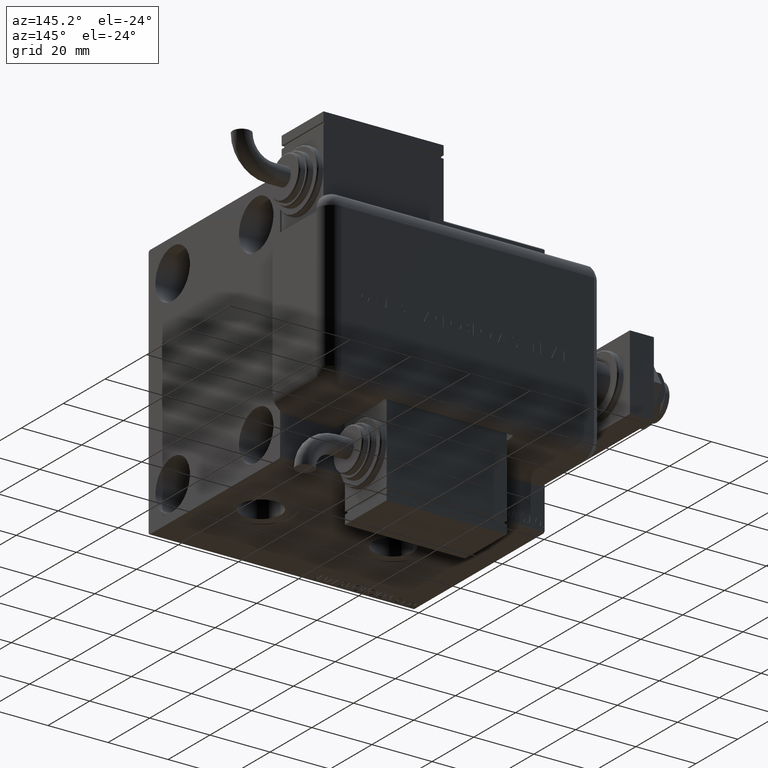
[diagram: clean part render]
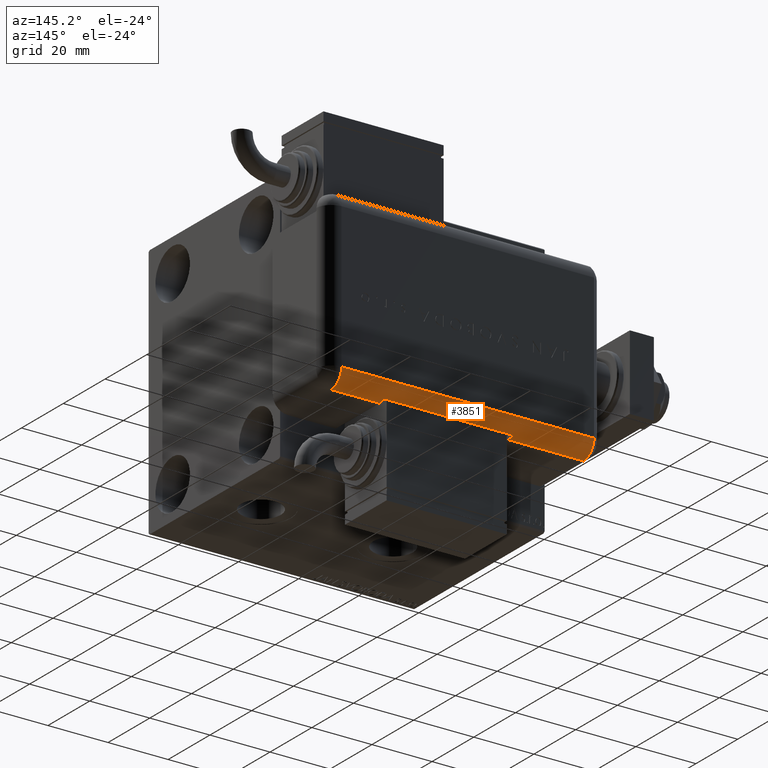
[diagram: same view with one face highlighted and labeled with its STEP entity id]
A machine part, auxiliary view. The second image highlights one B-rep face of the part: STEP entity #3851.
In plain terms, the highlighted cylindrical surface (edge-blend (fillet) strip) has radius 5 mm, axis along (1, -0, -0).
Its self-contained STEP definition (entity closure, byte-faithful):
#168 = ORIENTED_EDGE ( 'NONE', *, *, #21626, .T. ) ;
#2035 = CIRCLE ( 'NONE', #58034, 5.000000000000000888 ) ;
#2290 = CARTESIAN_POINT ( 'NONE',  ( -28.48998886412872267, 22.99999999999998934, 89.00000000000000000 ) ) ;
#2362 = VERTEX_POINT ( 'NONE', #13643 ) ;
#2425 = VERTEX_POINT ( 'NONE', #55912 ) ;
#3851 = ADVANCED_FACE ( 'NONE', ( #56296 ), #14916, .T. ) ;
#5932 = CARTESIAN_POINT ( 'NONE',  ( -28.99999999999999645, 20.79999999999998295, 89.00000000000000000 ) ) ;
#6574 = ORIENTED_EDGE ( 'NONE', *, *, #38309, .F. ) ;
#7389 = AXIS2_PLACEMENT_3D ( 'NONE', #13482, #41269, #40672 ) ;
#8608 = ORIENTED_EDGE ( 'NONE', *, *, #51538, .F. ) ;
#9368 = EDGE_CURVE ( 'NONE', #51849, #13076, #21252, .T. ) ;
#9554 = AXIS2_PLACEMENT_3D ( 'NONE', #33342, #51759, #33943 ) ;
#10216 = VERTEX_POINT ( 'NONE', #10435 ) ;
#10435 = CARTESIAN_POINT ( 'NONE',  ( -28.48998886412872267, 22.99999999999998934, 21.00000000000000355 ) ) ;
#10569 = AXIS2_PLACEMENT_3D ( 'NONE', #37053, #13509, #18353 ) ;
#10987 = ORIENTED_EDGE ( 'NONE', *, *, #31559, .F. ) ;
#11485 = DIRECTION ( 'NONE',  ( 0.000000000000000000, -0.000000000000000000, -1.000000000000000000 ) ) ;
#13076 = VERTEX_POINT ( 'NONE', #29889 ) ;
#13482 = CARTESIAN_POINT ( 'NONE',  ( -23.99999999999999645, 20.79999999999998295, 21.00000000000000355 ) ) ;
#13509 = DIRECTION ( 'NONE',  ( -0.000000000000000000, -0.000000000000000000, 1.000000000000000000 ) ) ;
#13643 = CARTESIAN_POINT ( 'NONE',  ( -28.99999999999999645, 20.79999999999998295, 64.00000000000000000 ) ) ;
#14304 = DIRECTION ( 'NONE',  ( 0.000000000000000000, 0.000000000000000000, -1.000000000000000000 ) ) ;
#14916 = CYLINDRICAL_SURFACE ( 'NONE', #9554, 5.000000000000000888 ) ;
#16842 = CIRCLE ( 'NONE', #31323, 5.000000000000000888 ) ;
#16928 = DIRECTION ( 'NONE',  ( 1.000000000000000000, 0.000000000000000000, 0.000000000000000000 ) ) ;
#17154 = DIRECTION ( 'NONE',  ( -0.000000000000000000, -0.000000000000000000, 1.000000000000000000 ) ) ;
#17467 = CARTESIAN_POINT ( 'NONE',  ( -23.99999999999999645, 25.79999999999998295, 89.00000000000000000 ) ) ;
#17501 = VECTOR ( 'NONE', #25878, 1000.000000000000000 ) ;
#18353 = DIRECTION ( 'NONE',  ( -1.000000000000000000, 0.000000000000000000, 0.000000000000000000 ) ) ;
#18787 = CARTESIAN_POINT ( 'NONE',  ( -23.99999999999999645, 25.79999999999998295, 89.00000000000000000 ) ) ;
#21252 = CIRCLE ( 'NONE', #10569, 5.000000000000000888 ) ;
#21571 = CARTESIAN_POINT ( 'NONE',  ( -23.99999999999999645, 20.79999999999998295, 5.000000000000004441 ) ) ;
#21626 = EDGE_CURVE ( 'NONE', #38098, #2425, #16842, .T. ) ;
#23207 = LINE ( 'NONE', #5932, #38650 ) ;
#23359 = ORIENTED_EDGE ( 'NONE', *, *, #55909, .F. ) ;
#23901 = VERTEX_POINT ( 'NONE', #38162 ) ;
#25878 = DIRECTION ( 'NONE',  ( 0.000000000000000000, 0.000000000000000000, -1.000000000000000000 ) ) ;
#26400 = DIRECTION ( 'NONE',  ( -0.000000000000000000, -0.000000000000000000, 1.000000000000000000 ) ) ;
#29889 = CARTESIAN_POINT ( 'NONE',  ( -28.99999999999999645, 20.79999999999998295, 89.00000000000000000 ) ) ;
#30164 = ORIENTED_EDGE ( 'NONE', *, *, #9368, .F. ) ;
#31323 = AXIS2_PLACEMENT_3D ( 'NONE', #21571, #26400, #54475 ) ;
#31522 = CIRCLE ( 'NONE', #7389, 5.000000000000000888 ) ;
#31559 = EDGE_CURVE ( 'NONE', #38179, #2425, #45453, .T. ) ;
#33342 = CARTESIAN_POINT ( 'NONE',  ( -23.99999999999999645, 20.79999999999998295, 89.00000000000000000 ) ) ;
#33943 = DIRECTION ( 'NONE',  ( -1.000000000000000000, 0.000000000000000000, 0.000000000000000000 ) ) ;
#36407 = ORIENTED_EDGE ( 'NONE', *, *, #52077, .F. ) ;
#36482 = EDGE_CURVE ( 'NONE', #10216, #38179, #31522, .T. ) ;
#37053 = CARTESIAN_POINT ( 'NONE',  ( -23.99999999999999645, 20.79999999999998295, 89.00000000000000000 ) ) ;
#38098 = VERTEX_POINT ( 'NONE', #50434 ) ;
#38162 = CARTESIAN_POINT ( 'NONE',  ( -28.48998886412872267, 22.99999999999998934, 64.00000000000000000 ) ) ;
#38179 = VERTEX_POINT ( 'NONE', #56443 ) ;
#38309 = EDGE_CURVE ( 'NONE', #38098, #51849, #39805, .T. ) ;
#38650 = VECTOR ( 'NONE', #50688, 1000.000000000000000 ) ;
#39299 = EDGE_LOOP ( 'NONE', ( #58451, #23359, #36407, #8608, #30164, #6574, #168, #10987 ) ) ;
#39805 = LINE ( 'NONE', #17467, #48975 ) ;
#40672 = DIRECTION ( 'NONE',  ( -1.000000000000000000, 4.163336342344336238E-15, 0.000000000000000000 ) ) ;
#41269 = DIRECTION ( 'NONE',  ( -0.000000000000000000, -0.000000000000000000, 1.000000000000000000 ) ) ;
#44114 = CARTESIAN_POINT ( 'NONE',  ( -23.99999999999999645, 20.79999999999998295, 64.00000000000000000 ) ) ;
#45453 = LINE ( 'NONE', #55682, #53502 ) ;
#48975 = VECTOR ( 'NONE', #17154, 1000.000000000000000 ) ;
#50434 = CARTESIAN_POINT ( 'NONE',  ( -23.99999999999999645, 25.79999999999998295, 5.000000000000004441 ) ) ;
#50688 = DIRECTION ( 'NONE',  ( 0.000000000000000000, 0.000000000000000000, -1.000000000000000000 ) ) ;
#51538 = EDGE_CURVE ( 'NONE', #13076, #2362, #23207, .T. ) ;
#51759 = DIRECTION ( 'NONE',  ( 0.000000000000000000, 0.000000000000000000, -1.000000000000000000 ) ) ;
#51849 = VERTEX_POINT ( 'NONE', #18787 ) ;
#52077 = EDGE_CURVE ( 'NONE', #2362, #23901, #2035, .T. ) ;
#53053 = LINE ( 'NONE', #2290, #17501 ) ;
#53502 = VECTOR ( 'NONE', #14304, 1000.000000000000000 ) ;
#54475 = DIRECTION ( 'NONE',  ( -1.000000000000000000, 0.000000000000000000, 0.000000000000000000 ) ) ;
#55682 = CARTESIAN_POINT ( 'NONE',  ( -28.99999999999999645, 20.79999999999998295, 89.00000000000000000 ) ) ;
#55909 = EDGE_CURVE ( 'NONE', #23901, #10216, #53053, .T. ) ;
#55912 = CARTESIAN_POINT ( 'NONE',  ( -28.99999999999999645, 20.79999999999998295, 5.000000000000004441 ) ) ;
#56296 = FACE_OUTER_BOUND ( 'NONE', #39299, .T. ) ;
#56443 = CARTESIAN_POINT ( 'NONE',  ( -28.99999999999999645, 20.79999999999998295, 21.00000000000000355 ) ) ;
#58034 = AXIS2_PLACEMENT_3D ( 'NONE', #44114, #11485, #16928 ) ;
#58451 = ORIENTED_EDGE ( 'NONE', *, *, #36482, .F. ) ;